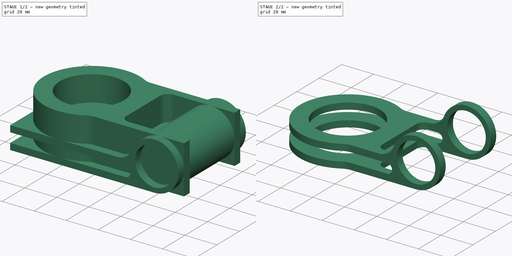
[diagram: build sequence overview — one tinted view per stage of 2, left to right]
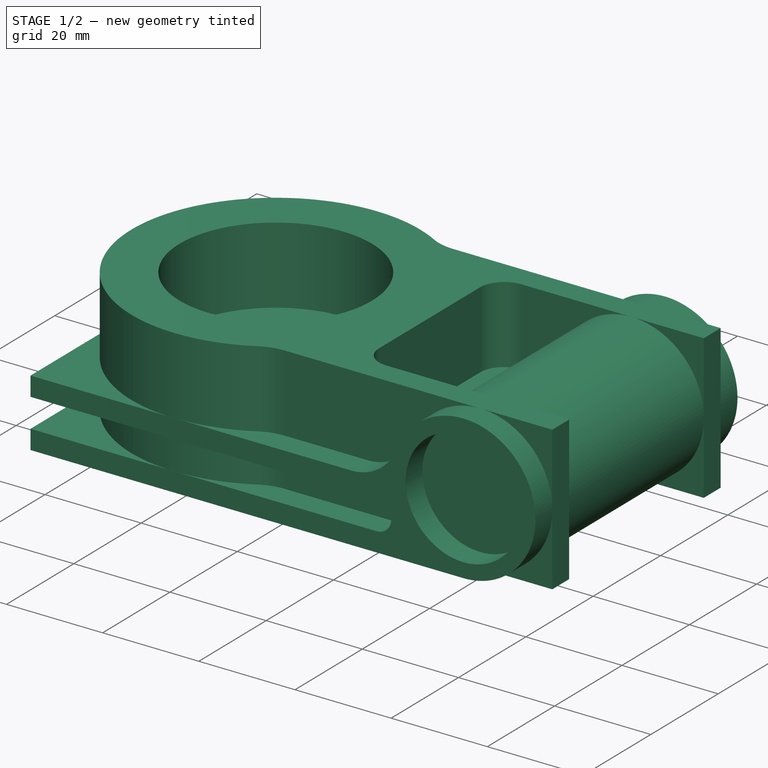
[diagram: stage 1 of 2 — iso view after this stage's code; geometry added in this stage tinted green]
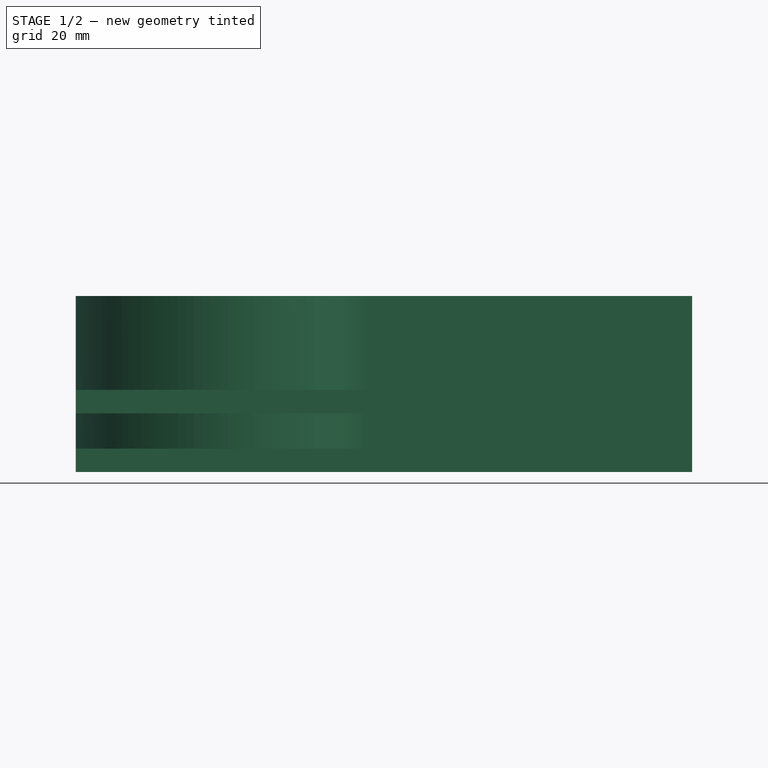
[diagram: stage 1 of 2 — front view after this stage's code; geometry added in this stage tinted green]
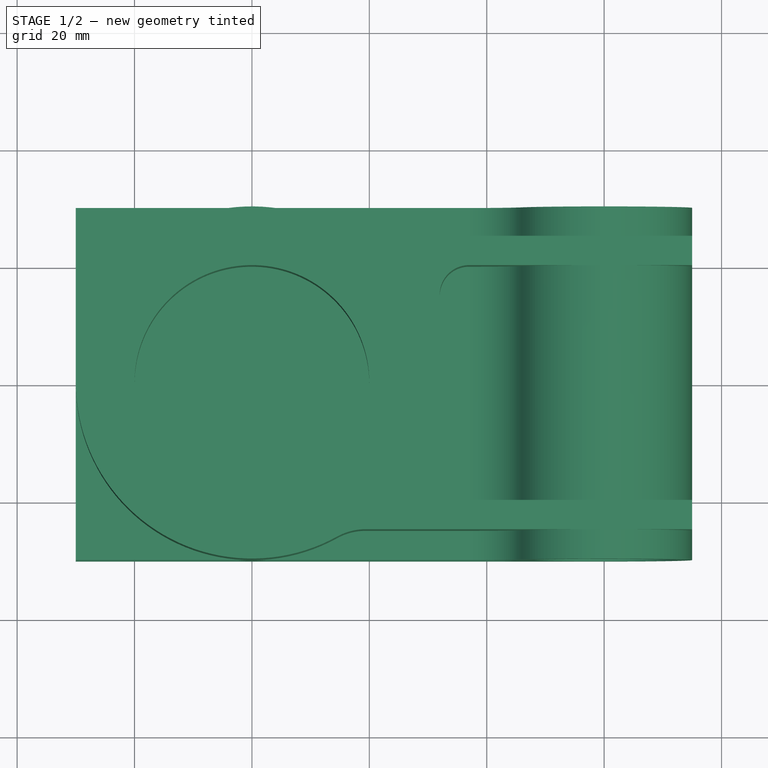
[diagram: stage 1 of 2 — top view after this stage's code; geometry added in this stage tinted green]
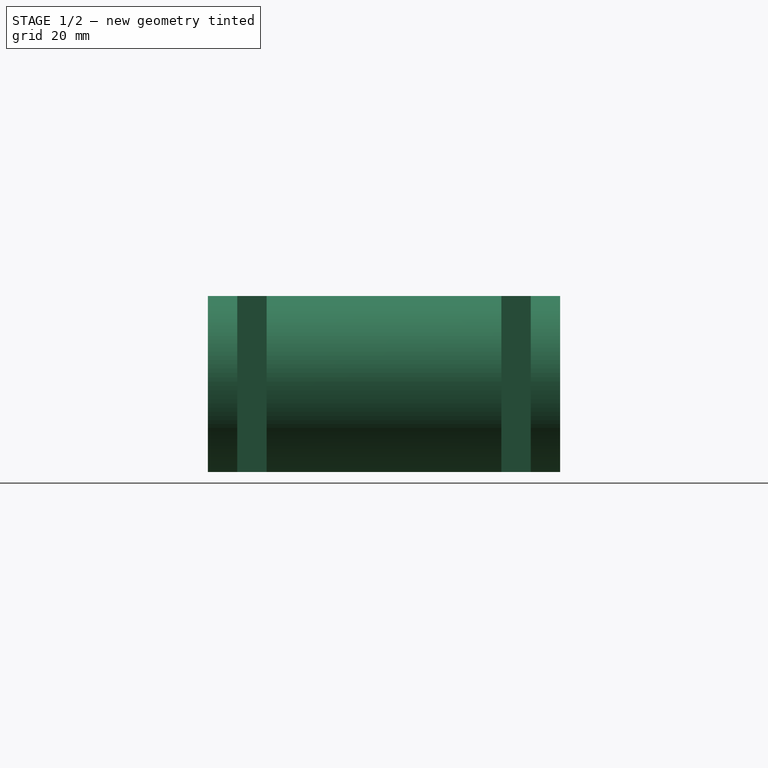
[diagram: stage 1 of 2 — right view after this stage's code; geometry added in this stage tinted green]
FCSTD DOCUMENT  (FreeCAD 0.19R23463 (Git))
Label: uebung_klemme
License: All rights reserved
LicenseURL: http://en.wikipedia.org/wiki/All_rights_reserved
objects: Sketcher::SketchObject×2, PartDesign::Pad×2, PartDesign::Body×2, PartDesign::Boolean×1
note: 9 computed .brp shape members not serialized (recipe doc carries the construction recipe); baked Part::Feature solids carry a one-line shape summary decoded from their .brp

FEATURE [Sketcher::SketchObject] Sketch  label="sk_draufsicht"
  MapMode = 5
  Support = -> [XY_Plane]
  sketch-geometry (15):
    g0: Circle CenterX=0 CenterY=0 CenterZ=0 NormalX=0 NormalY=0 NormalZ=1 AngleXU=0 Radius=20
    g1: LineSegment StartX=75 StartY=25 StartZ=0 EndX=75 EndY=20 EndZ=0
    g2: LineSegment StartX=75 StartY=20 StartZ=0 EndX=37 EndY=20 EndZ=0
    g3: LineSegment StartX=32 StartY=15 StartZ=0 EndX=32 EndY=-15 EndZ=0
    g4: LineSegment StartX=37 StartY=-20 StartZ=0 EndX=75 EndY=-20 EndZ=0
    g5: LineSegment StartX=75 StartY=-20 StartZ=0 EndX=75 EndY=-25 EndZ=0
    g6: ArcOfCircle CenterX=0 CenterY=0 CenterZ=0 NormalX=0 NormalY=0 NormalZ=1 AngleXU=0 Radius=30 StartAngle=1.06544 EndAngle=5.21775
    g7: ArcOfCircle CenterX=37 CenterY=-15 CenterZ=0 NormalX=0 NormalY=0 NormalZ=1 AngleXU=0 Radius=5 StartAngle=3.14159 EndAngle=4.71239
    g8: ArcOfCircle CenterX=37 CenterY=15 CenterZ=0 NormalX=0 NormalY=0 NormalZ=1 AngleXU=0 Radius=5 StartAngle=1.5708 EndAngle=3.14159
    g9: GeomPoint X=32 Y=0 Z=0
    g10: LineSegment StartX=19.3649 StartY=-25 StartZ=0 EndX=75 EndY=-25 EndZ=0
    g11: ArcOfCircle CenterX=19.3649 CenterY=-35 CenterZ=0 NormalX=0 NormalY=0 NormalZ=1 AngleXU=0 Radius=10 StartAngle=1.5708 EndAngle=2.07616
    g12: LineSegment StartX=75 StartY=25 StartZ=0 EndX=19.3649 EndY=25 EndZ=0
    g13: ArcOfCircle CenterX=19.3649 CenterY=35 CenterZ=0 NormalX=0 NormalY=0 NormalZ=1 AngleXU=0 Radius=10 StartAngle=4.20703 EndAngle=4.71239
    g14: GeomPoint X=-30 Y=0 Z=0
  constraints (39):
    c: Coincident(g0,g-1)
    c: Diameter(g0) = 40
    c: Vertical(g1)
    c: Coincident(g1,g2)
    c: Horizontal(g2)
    c: Vertical(g3)
    c: Horizontal(g4)
    c: Coincident(g4,g5)
    c: Vertical(g5)
    c: DistanceY(g4,g1) = 40
    c: Symmetric(g4,g1,g-1)
    c: Tangent(g3,g7) = -1.5708
    c: Tangent(g4,g7) = -1.5708
    c: Tangent(g2,g8) = -1.5708
    c: Tangent(g3,g8) = -1.5708
    c: Radius(g8) = 5
    c: Equal(g8,g7)
    c: PointOnObject(g9,g3)
    c: PointOnObject(g9,g-1)
    c: DistanceX(g9,g4) = 43
    c: Vertical(g6,g6)
    c: Coincident(g6,g0)
    c: Diameter(g6) = 60
    c: Equal(g5,g1)
    c: Coincident(g10,g5)
    c: Horizontal(g10)
    c: Tangent(g10,g11) = 1.5708
    c: Tangent(g6,g11) = 1.5708
    c: Radius(g11) = 10
    c: DistanceY(g5,g1) = 50
    c: Coincident(g12,g1)
    c: Horizontal(g12)
    c: Coincident(g13,g6)
    c: Coincident(g13,g12)
    c: Radius(g13) = 10
    c: Vertical(g12,g10)
    c: PointOnObject(g14,g6)
    c: PointOnObject(g14,g-1)
    c: DistanceX(g14,g5) = 105
FEATURE [PartDesign::Pad] Pad  label="draufsicht"
  Direction = (1,1,1)
  Length = 30
  Length2 = 100
  Profile = -> Sketch
  Refine = true
  Type = 0
FEATURE [Sketcher::SketchObject] Sketch002  label="sk_seitenansicht"
  MapMode = 5
  Placement = pos=(0,0,0) rot=(1,0,0;1.5708rad)
  Support = -> [XZ_Plane001]
  sketch-geometry (10):
    g0: LineSegment StartX=-30 StartY=14 StartZ=0 EndX=-30 EndY=10 EndZ=0
    g1: LineSegment StartX=-30 StartY=10 StartZ=0 EndX=42 EndY=10 EndZ=0
    g2: ArcOfCircle CenterX=42 CenterY=7 CenterZ=0 NormalX=0 NormalY=0 NormalZ=1 AngleXU=0 Radius=3 StartAngle=4.71239 EndAngle=7.85398
    g3: LineSegment StartX=42 StartY=4 StartZ=0 EndX=-30 EndY=4 EndZ=0
    g4: LineSegment StartX=-30 StartY=4 StartZ=0 EndX=-30 EndY=0 EndZ=0
    g5: LineSegment StartX=-30 StartY=0 StartZ=0 EndX=60 EndY=0 EndZ=0
    g6: ArcOfCircle CenterX=60 CenterY=15 CenterZ=0 NormalX=0 NormalY=0 NormalZ=1 AngleXU=0 Radius=15 StartAngle=4.71239 EndAngle=9.05651
    g7: ArcOfCircle CenterX=36.6762 CenterY=24 CenterZ=0 NormalX=0 NormalY=0 NormalZ=1 AngleXU=0 Radius=10 StartAngle=4.71239 EndAngle=5.91492
    g8: LineSegment StartX=36.6762 StartY=14 StartZ=0 EndX=-30 EndY=14 EndZ=0
    g9: Circle CenterX=60 CenterY=15 CenterZ=0 NormalX=0 NormalY=0 NormalZ=1 AngleXU=0 Radius=12
  constraints (27):
    c: Coincident(g0,g1)
    c: Horizontal(g1)
    c: Tangent(g1,g2) = 1.5708
    c: Tangent(g2,g3) = 1.5708
    c: Coincident(g3,g4)
    c: Vertical(g4)
    c: PointOnObject(g4,g-1)
    c: Vertical(g0)
    c: Equal(g0,g4)
    c: DistanceY(g4,g0) = 14
    c: DistanceY(g4,g4) = 4
    c: Radius(g2) = 3
    c: DistanceX(g3,g2) = 72
    c: Vertical(g3,g0)
    c: Coincident(g4,g5)
    c: Horizontal(g5)
    c: Tangent(g5,g6) = -1.5708
    c: Tangent(g6,g7) = 1.5708
    c: Tangent(g7,g8) = 1.5708
    c: Coincident(g8,g0)
    c: Horizontal(g8)
    c: Radius(g7) = 10
    c: DistanceX(g4,g6) = 90
    c: DistanceX(g-1,g6) = 60
    c: Radius(g6) = 15
    c: Coincident(g9,g6)
    c: Diameter(g9) = 24
FEATURE [PartDesign::Pad] Pad001  label="seitenansicht"
  Direction = (1,1,1)
  Length = 60
  Length2 = 100
  Midplane = true
  Placement = pos=(0,0,0) rot=(1,0,0;1.5708rad)
  Profile = -> Sketch002
  Refine = true
  Type = 0
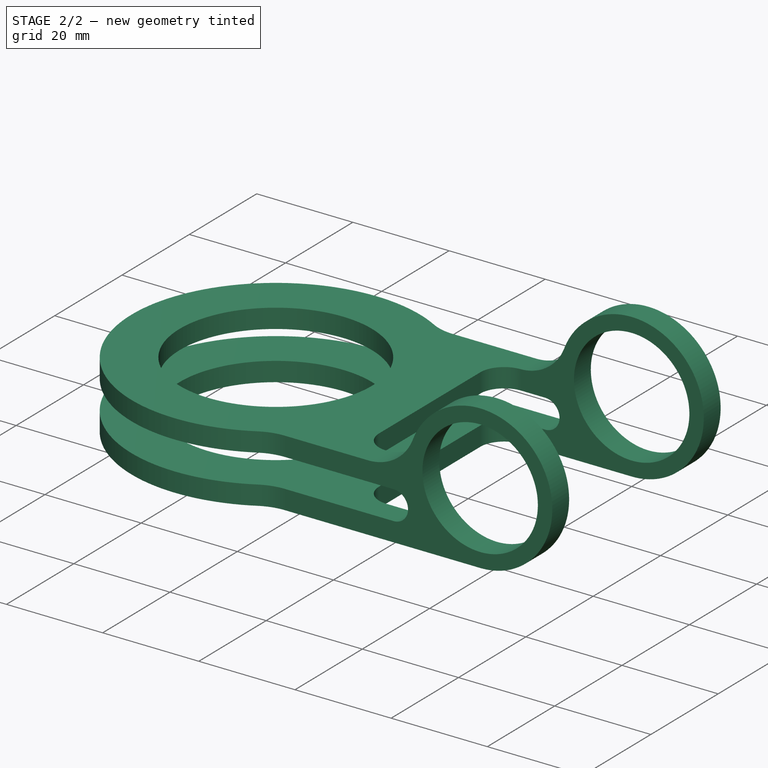
[diagram: stage 2 of 2 — iso view after this stage's code; geometry added in this stage tinted green]
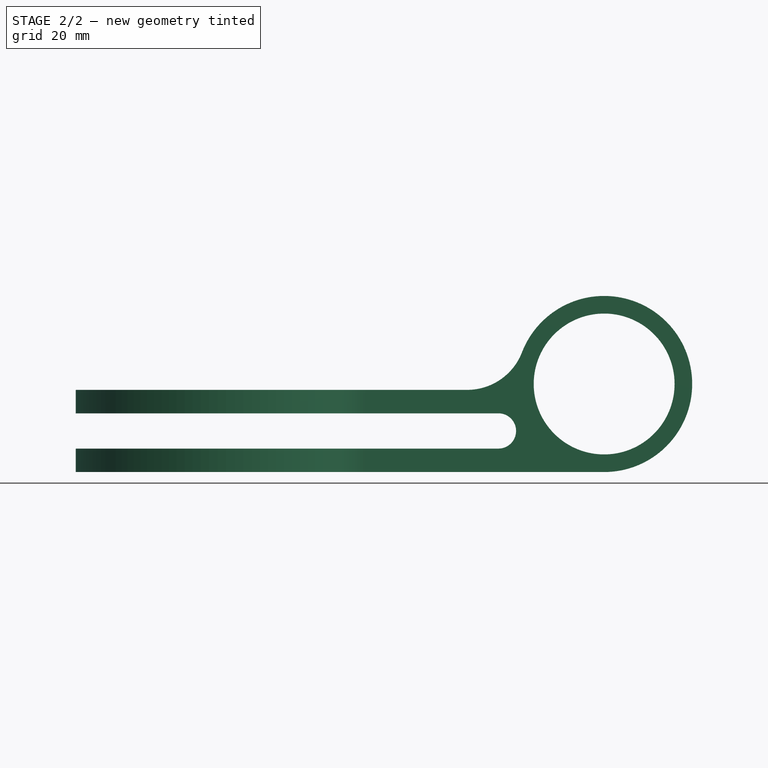
[diagram: stage 2 of 2 — front view after this stage's code; geometry added in this stage tinted green]
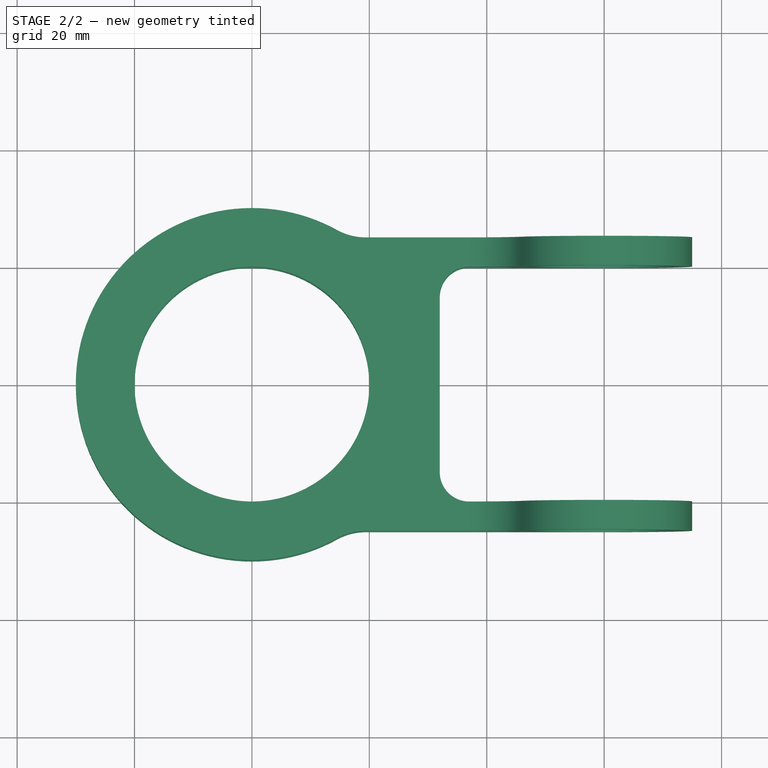
[diagram: stage 2 of 2 — top view after this stage's code; geometry added in this stage tinted green]
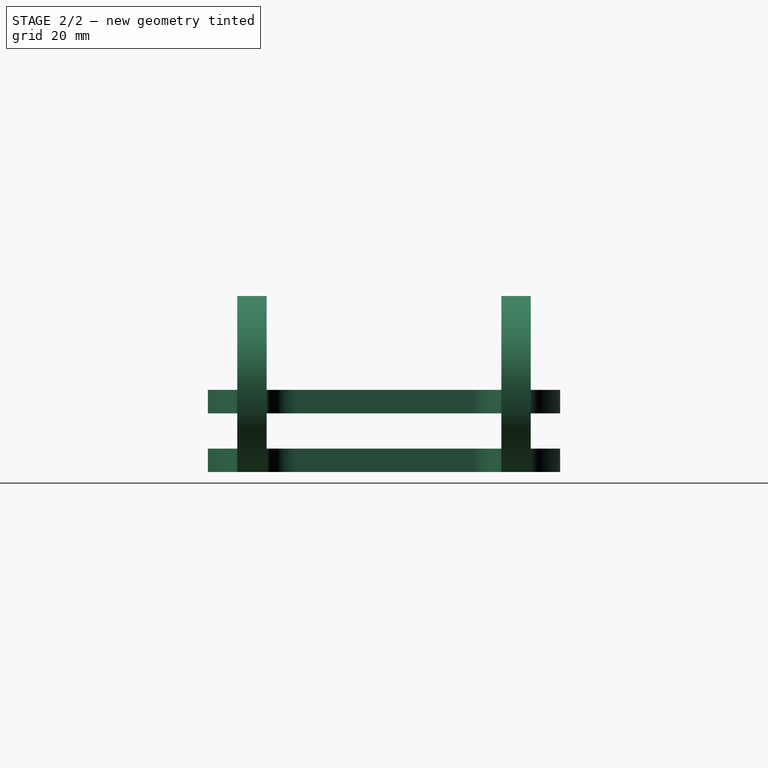
[diagram: stage 2 of 2 — right view after this stage's code; geometry added in this stage tinted green]
FEATURE [PartDesign::Body] Body001  label="body_seitenansicht"
  Group = -> [Sketch002,Pad001]
  Origin = -> Origin001
  Tip = -> Pad001
FEATURE [PartDesign::Boolean] Boolean
  BaseFeature = -> Pad
  Group = -> [Body001]
  Refine = true
  Type = 2
FEATURE [PartDesign::Body] Body  label="body_draufsicht"
  Group = -> [Sketch,Pad,Boolean]
  Origin = -> Origin
  Tip = -> Boolean
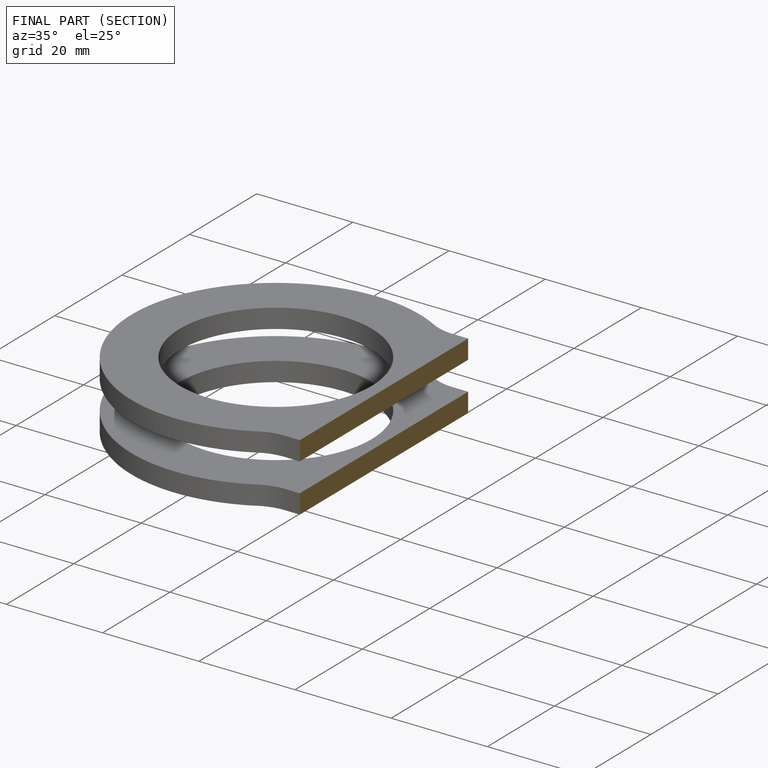
[diagram: finished part — half-section view (interior)]
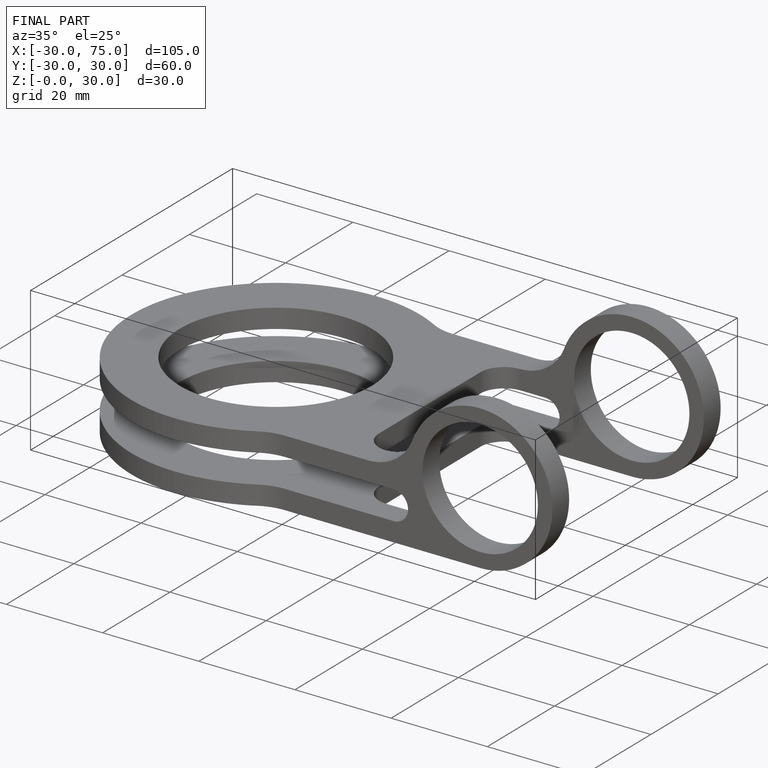
[diagram: finished part — iso view with bounding-box wireframe]
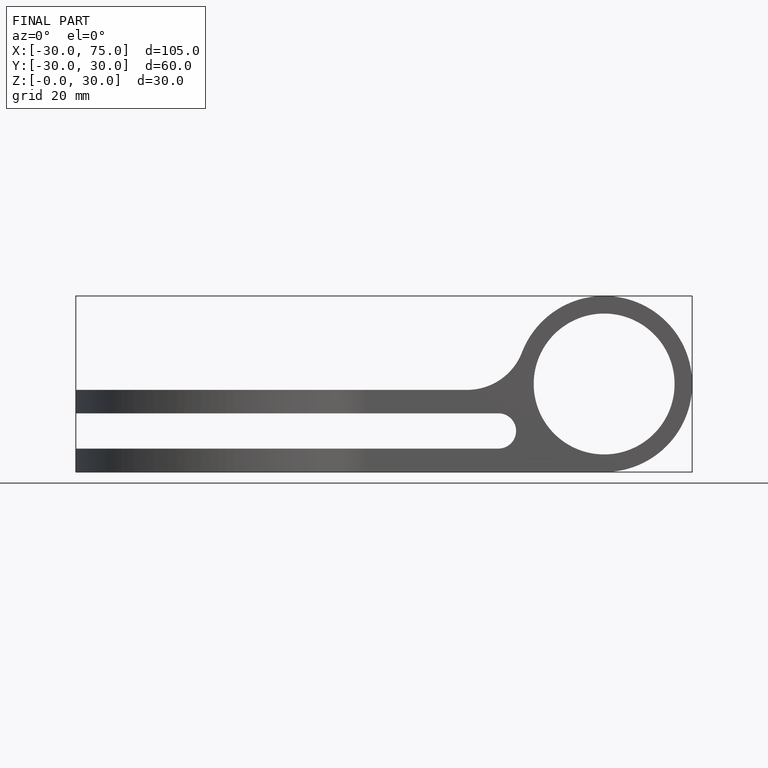
[diagram: finished part — front view with bounding-box wireframe]
